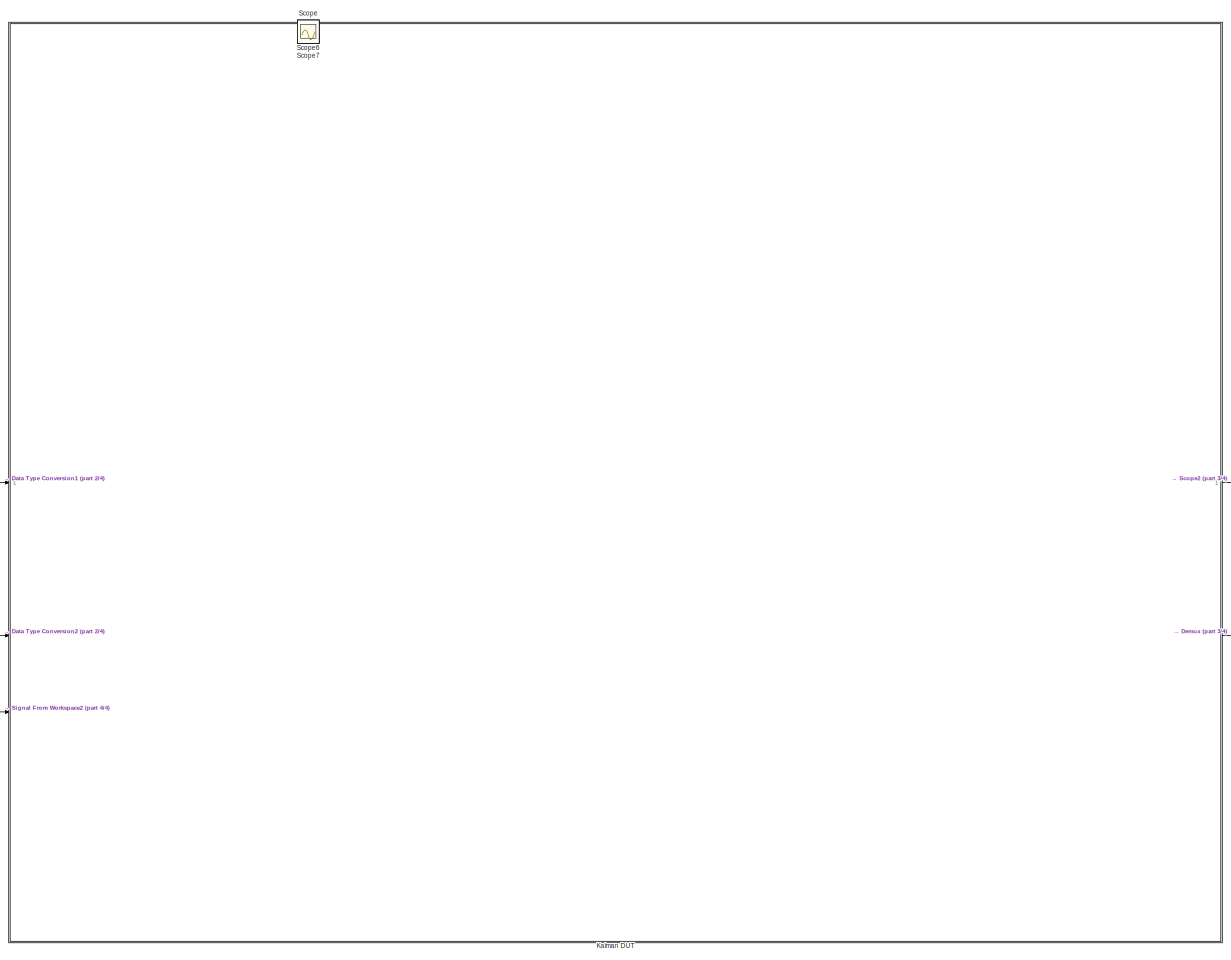
[diagram: root canvas - part 1/4, center side, full height]
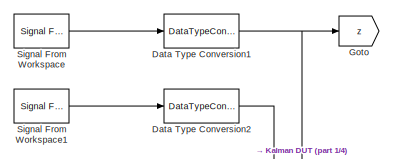
[diagram: root canvas - part 2/4, top left region]
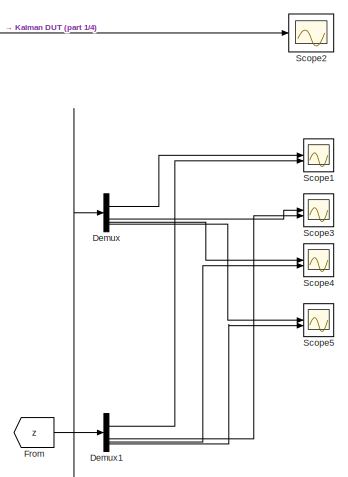
[diagram: root canvas - part 3/4, top right region]
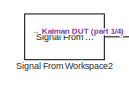
[diagram: root canvas - part 4/4, top left region]
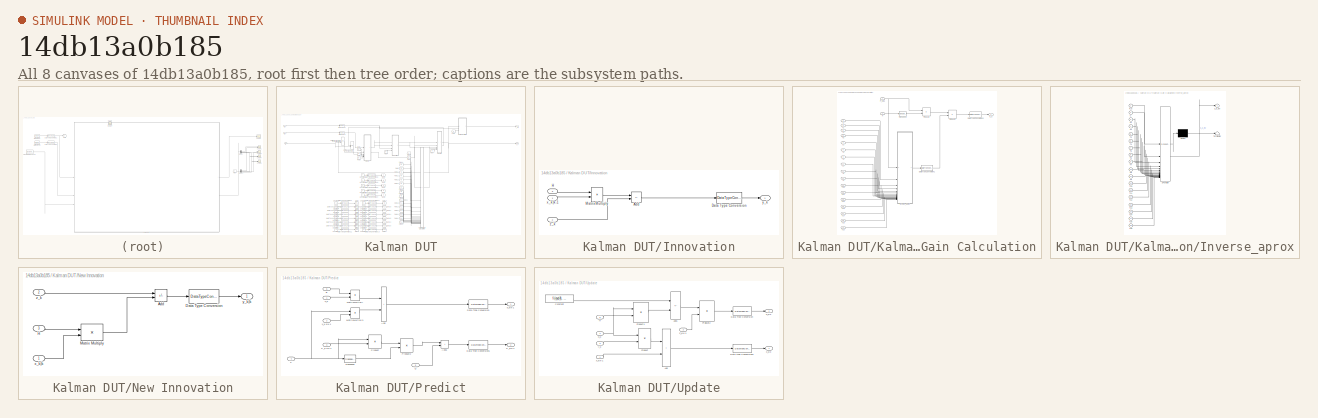
[diagram: thumbnail index - all 8 canvases of the model, root first then tree order]
MODEL slx_14db13a0b185
KIND model
CONFIG AbsTol = auto
CONFIG EnableMultiTasking = off
CONFIG FixedStep = auto
CONFIG MaxStep = auto
CONFIG MinStep = auto
CONFIG RelTol = 1e-3
CONFIG SampleTimeConstraint = Unconstrained
CONFIG SolverName = VariableStepAuto
CONFIG StartTime = 0.0
CONFIG StopTime = StopTime
BLOCK [DataTypeConversion] Data Type Conversion1
  OutDataTypeStr = FixedPointPrecision
  RndMeth = Floor
  SaturateOnIntegerOverflow = off
BLOCK [DataTypeConversion] Data Type Conversion2
  OutDataTypeStr = FixedPointPrecision
  RndMeth = Floor
  SaturateOnIntegerOverflow = off
BLOCK [Demux] Demux
BLOCK [Demux] Demux1
BLOCK [From] From
  GotoTag = z
BLOCK [Goto] Goto
  GotoTag = z
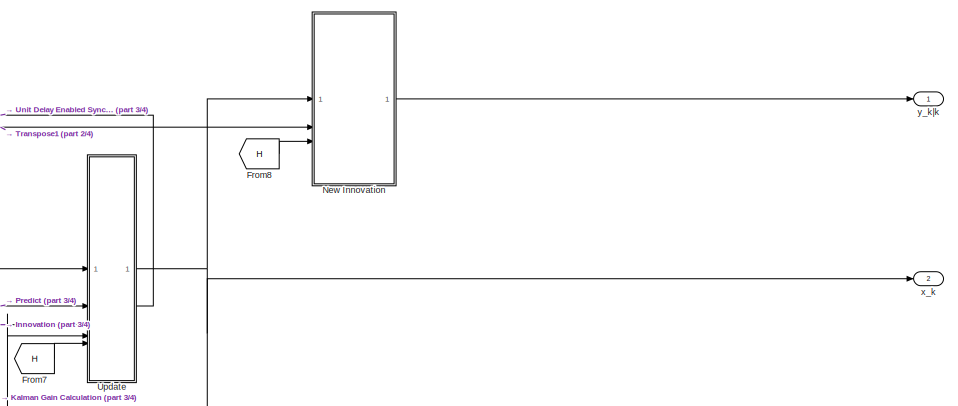
[diagram: Kalman DUT - part 1/4, top right region]
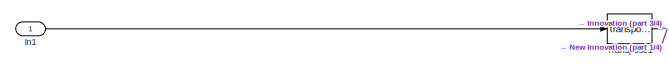
[diagram: Kalman DUT - part 2/4, top left region]
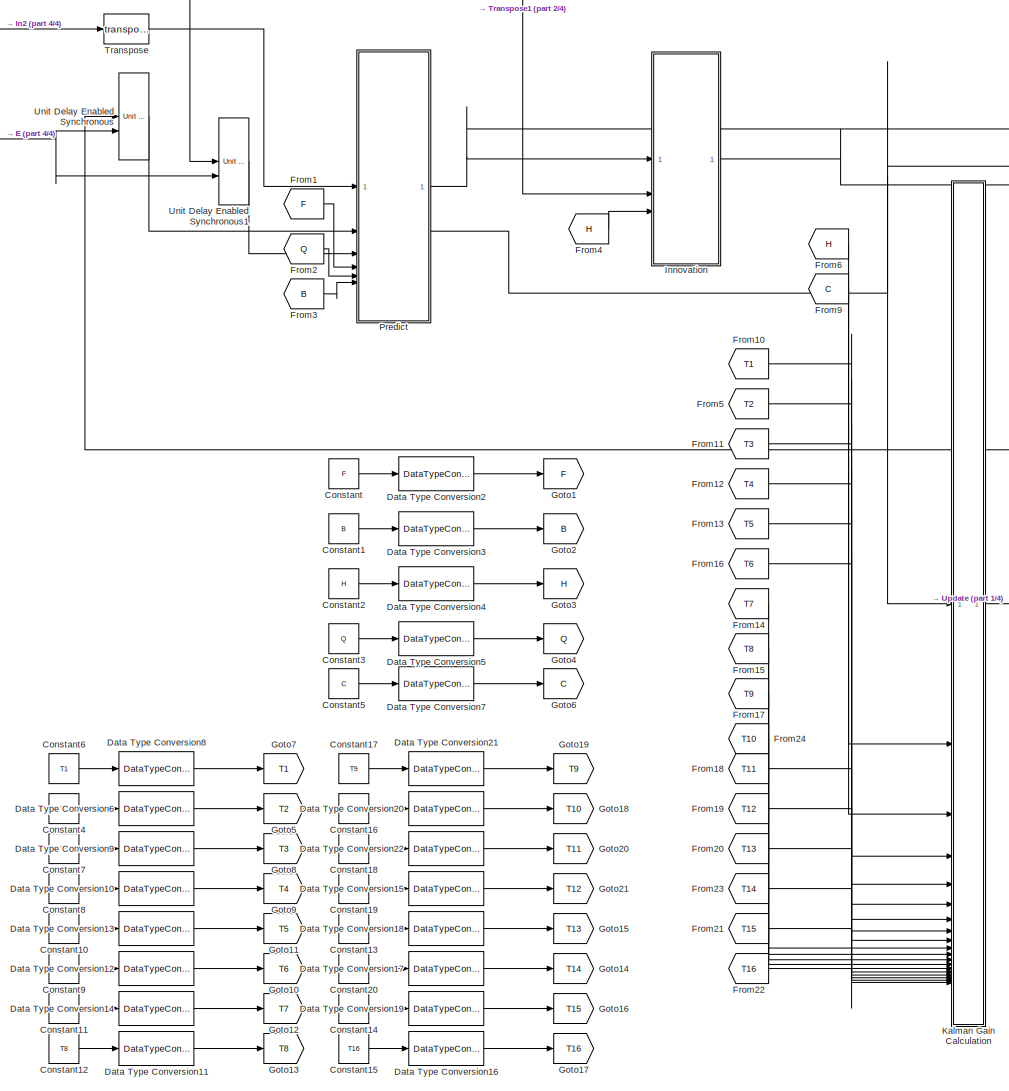
[diagram: Kalman DUT - part 3/4, center side, full height]
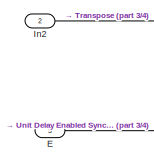
[diagram: Kalman DUT - part 4/4, top left region]
BLOCK [SubSystem] Kalman DUT
BLOCK [Constant] Kalman DUT/Constant
  Value = F
BLOCK [Constant] Kalman DUT/Constant1
  Value = B
BLOCK [Constant] Kalman DUT/Constant10
  Value = T5
BLOCK [Constant] Kalman DUT/Constant11
  Value = T7
BLOCK [Constant] Kalman DUT/Constant12
  Value = T8
BLOCK [Constant] Kalman DUT/Constant13
  Value = T13
BLOCK [Constant] Kalman DUT/Constant14
  Value = T15
BLOCK [Constant] Kalman DUT/Constant15
  Value = T16
BLOCK [Constant] Kalman DUT/Constant16
  Value = T10
BLOCK [Constant] Kalman DUT/Constant17
  Value = T9
BLOCK [Constant] Kalman DUT/Constant18
  Value = T11
BLOCK [Constant] Kalman DUT/Constant19
  Value = T12
BLOCK [Constant] Kalman DUT/Constant2
  Value = H
BLOCK [Constant] Kalman DUT/Constant20
  Value = T14
BLOCK [Constant] Kalman DUT/Constant3
  Value = Q
BLOCK [Constant] Kalman DUT/Constant4
  Value = T2
BLOCK [Constant] Kalman DUT/Constant5
  NameLocation = top
  Value = C
BLOCK [Constant] Kalman DUT/Constant6
  Value = T1
BLOCK [Constant] Kalman DUT/Constant7
  Value = T3
BLOCK [Constant] Kalman DUT/Constant8
  Value = T4
BLOCK [Constant] Kalman DUT/Constant9
  Value = T6
BLOCK [DataTypeConversion] Kalman DUT/Data Type Conversion10
  OutDataTypeStr = FixedPointPrecision
  RndMeth = Floor
  SaturateOnIntegerOverflow = off
BLOCK [DataTypeConversion] Kalman DUT/Data Type Conversion11
  OutDataTypeStr = FixedPointPrecision
  RndMeth = Floor
  SaturateOnIntegerOverflow = off
BLOCK [DataTypeConversion] Kalman DUT/Data Type Conversion12
  OutDataTypeStr = FixedPointPrecision
  RndMeth = Floor
  SaturateOnIntegerOverflow = off
BLOCK [DataTypeConversion] Kalman DUT/Data Type Conversion13
  OutDataTypeStr = FixedPointPrecision
  RndMeth = Floor
  SaturateOnIntegerOverflow = off
BLOCK [DataTypeConversion] Kalman DUT/Data Type Conversion14
  OutDataTypeStr = FixedPointPrecision
  RndMeth = Floor
  SaturateOnIntegerOverflow = off
BLOCK [DataTypeConversion] Kalman DUT/Data Type Conversion15
  OutDataTypeStr = FixedPointPrecision
  RndMeth = Floor
  SaturateOnIntegerOverflow = off
BLOCK [DataTypeConversion] Kalman DUT/Data Type Conversion16
  OutDataTypeStr = FixedPointPrecision
  RndMeth = Floor
  SaturateOnIntegerOverflow = off
BLOCK [DataTypeConversion] Kalman DUT/Data Type Conversion17
  OutDataTypeStr = FixedPointPrecision
  RndMeth = Floor
  SaturateOnIntegerOverflow = off
BLOCK [DataTypeConversion] Kalman DUT/Data Type Conversion18
  OutDataTypeStr = FixedPointPrecision
  RndMeth = Floor
  SaturateOnIntegerOverflow = off
BLOCK [DataTypeConversion] Kalman DUT/Data Type Conversion19
  OutDataTypeStr = FixedPointPrecision
  RndMeth = Floor
  SaturateOnIntegerOverflow = off
BLOCK [DataTypeConversion] Kalman DUT/Data Type Conversion2
  OutDataTypeStr = FixedPointPrecision
  RndMeth = Floor
  SaturateOnIntegerOverflow = off
BLOCK [DataTypeConversion] Kalman DUT/Data Type Conversion20
  OutDataTypeStr = FixedPointPrecision
  RndMeth = Floor
  SaturateOnIntegerOverflow = off
BLOCK [DataTypeConversion] Kalman DUT/Data Type Conversion21
  OutDataTypeStr = FixedPointPrecision
  RndMeth = Floor
  SaturateOnIntegerOverflow = off
BLOCK [DataTypeConversion] Kalman DUT/Data Type Conversion22
  OutDataTypeStr = FixedPointPrecision
  RndMeth = Floor
  SaturateOnIntegerOverflow = off
BLOCK [DataTypeConversion] Kalman DUT/Data Type Conversion3
  OutDataTypeStr = FixedPointPrecision
  RndMeth = Floor
  SaturateOnIntegerOverflow = off
BLOCK [DataTypeConversion] Kalman DUT/Data Type Conversion4
  OutDataTypeStr = FixedPointPrecision
  RndMeth = Floor
  SaturateOnIntegerOverflow = off
BLOCK [DataTypeConversion] Kalman DUT/Data Type Conversion5
  OutDataTypeStr = FixedPointPrecision
  RndMeth = Floor
  SaturateOnIntegerOverflow = off
BLOCK [DataTypeConversion] Kalman DUT/Data Type Conversion6
  OutDataTypeStr = FixedPointPrecision
  RndMeth = Floor
  SaturateOnIntegerOverflow = off
BLOCK [DataTypeConversion] Kalman DUT/Data Type Conversion7
  OutDataTypeStr = FixedPointPrecision
  RndMeth = Floor
  SaturateOnIntegerOverflow = off
BLOCK [DataTypeConversion] Kalman DUT/Data Type Conversion8
  OutDataTypeStr = FixedPointPrecision
  RndMeth = Floor
  SaturateOnIntegerOverflow = off
BLOCK [DataTypeConversion] Kalman DUT/Data Type Conversion9
  OutDataTypeStr = FixedPointPrecision
  RndMeth = Floor
  SaturateOnIntegerOverflow = off
BLOCK [Inport] Kalman DUT/E
  Port = 3
BLOCK [From] Kalman DUT/From1
  GotoTag = F
BLOCK [From] Kalman DUT/From10
  GotoTag = T1
BLOCK [From] Kalman DUT/From11
  GotoTag = T3
BLOCK [From] Kalman DUT/From12
  GotoTag = T4
BLOCK [From] Kalman DUT/From13
  GotoTag = T5
BLOCK [From] Kalman DUT/From14
  GotoTag = T7
BLOCK [From] Kalman DUT/From15
  GotoTag = T8
BLOCK [From] Kalman DUT/From16
  GotoTag = T6
BLOCK [From] Kalman DUT/From17
  GotoTag = T9
BLOCK [From] Kalman DUT/From18
  GotoTag = T11
BLOCK [From] Kalman DUT/From19
  GotoTag = T12
BLOCK [From] Kalman DUT/From2
  GotoTag = Q
BLOCK [From] Kalman DUT/From20
  GotoTag = T13
BLOCK [From] Kalman DUT/From21
  GotoTag = T15
BLOCK [From] Kalman DUT/From22
  GotoTag = T16
BLOCK [From] Kalman DUT/From23
  GotoTag = T14
BLOCK [From] Kalman DUT/From24
  GotoTag = T10
BLOCK [From] Kalman DUT/From3
  GotoTag = B
BLOCK [From] Kalman DUT/From4
  GotoTag = H
BLOCK [From] Kalman DUT/From5
  GotoTag = T2
BLOCK [From] Kalman DUT/From6
  GotoTag = H
BLOCK [From] Kalman DUT/From7
  GotoTag = H
BLOCK [From] Kalman DUT/From8
  GotoTag = H
BLOCK [From] Kalman DUT/From9
  GotoTag = C
BLOCK [Goto] Kalman DUT/Goto1
  GotoTag = F
BLOCK [Goto] Kalman DUT/Goto10
  GotoTag = T6
BLOCK [Goto] Kalman DUT/Goto11
  GotoTag = T5
BLOCK [Goto] Kalman DUT/Goto12
  GotoTag = T7
BLOCK [Goto] Kalman DUT/Goto13
  GotoTag = T8
BLOCK [Goto] Kalman DUT/Goto14
  GotoTag = T14
BLOCK [Goto] Kalman DUT/Goto15
  GotoTag = T13
BLOCK [Goto] Kalman DUT/Goto16
  GotoTag = T15
BLOCK [Goto] Kalman DUT/Goto17
  GotoTag = T16
BLOCK [Goto] Kalman DUT/Goto18
  GotoTag = T10
BLOCK [Goto] Kalman DUT/Goto19
  GotoTag = T9
BLOCK [Goto] Kalman DUT/Goto2
  GotoTag = B
BLOCK [Goto] Kalman DUT/Goto20
  GotoTag = T11
BLOCK [Goto] Kalman DUT/Goto21
  GotoTag = T12
BLOCK [Goto] Kalman DUT/Goto3
  GotoTag = H
BLOCK [Goto] Kalman DUT/Goto4
  GotoTag = Q
BLOCK [Goto] Kalman DUT/Goto5
  GotoTag = T2
BLOCK [Goto] Kalman DUT/Goto6
  GotoTag = C
BLOCK [Goto] Kalman DUT/Goto7
  GotoTag = T1
BLOCK [Goto] Kalman DUT/Goto8
  GotoTag = T3
BLOCK [Goto] Kalman DUT/Goto9
  GotoTag = T4
BLOCK [Inport] Kalman DUT/In1
BLOCK [Inport] Kalman DUT/In2
  Port = 2
BLOCK [SubSystem] Kalman DUT/Innovation
BLOCK [Sum] Kalman DUT/Innovation/Add
  IconShape = rectangular
  Inputs = -+
BLOCK [DataTypeConversion] Kalman DUT/Innovation/Data Type Conversion
  OutDataTypeStr = FixedPointPrecision
  RndMeth = Floor
  SaturateOnIntegerOverflow = off
BLOCK [Inport] Kalman DUT/Innovation/H
  Port = 3
BLOCK [Product] Kalman DUT/Innovation/MatrixMultiply
  Multiplication = Matrix(*)
BLOCK [Inport] Kalman DUT/Innovation/x_k|k-1
BLOCK [Outport] Kalman DUT/Innovation/y_k
BLOCK [Inport] Kalman DUT/Innovation/z_k
  Port = 2
BLOCK [SubSystem] Kalman DUT/Kalman Gain Calculation
BLOCK [Inport] Kalman DUT/Kalman Gain Calculation/C
  Port = 3
BLOCK [DataTypeConversion] Kalman DUT/Kalman Gain Calculation/Data Type Conversion1
  OutDataTypeStr = FixedPointPrecision
  RndMeth = Floor
  SaturateOnIntegerOverflow = off
BLOCK [DataTypeConversion] Kalman DUT/Kalman Gain Calculation/Data Type Conversion2
  OutDataTypeStr = FixedPointPrecision
  RndMeth = Floor
  SaturateOnIntegerOverflow = off
BLOCK [Inport] Kalman DUT/Kalman Gain Calculation/H
  Port = 2
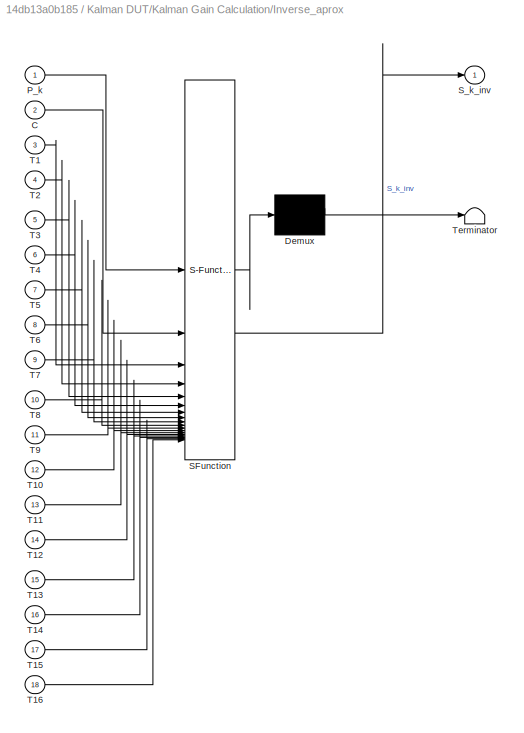
BLOCK [SubSystem] Kalman DUT/Kalman Gain Calculation/Inverse_aprox
  ErrorFcn = Stateflow.Translate.translate
  PermitHierarchicalResolution = ExplicitOnly
  SFBlockType = MATLAB Function
  TreatAsAtomicUnit = on
BLOCK [Demux] Kalman DUT/Kalman Gain Calculation/Inverse_aprox/ Demux 
  Outputs = 1
BLOCK [S-Function] Kalman DUT/Kalman Gain Calculation/Inverse_aprox/ SFunction 
  EnableBusSupport = off
  FunctionName = sf_sfun
  PortCounts = [18 2]
  SFcnIsStateOwnerBlock = off
  SFunctionDeploymentMode = off
  Tag = Stateflow S-Function 2
BLOCK [Terminator] Kalman DUT/Kalman Gain Calculation/Inverse_aprox/ Terminator 
BLOCK [Inport] Kalman DUT/Kalman Gain Calculation/Inverse_aprox/C
  Port = 2
BLOCK [Inport] Kalman DUT/Kalman Gain Calculation/Inverse_aprox/P_k
BLOCK [Outport] Kalman DUT/Kalman Gain Calculation/Inverse_aprox/S_k_inv
BLOCK [Inport] Kalman DUT/Kalman Gain Calculation/Inverse_aprox/T1
  Port = 3
BLOCK [Inport] Kalman DUT/Kalman Gain Calculation/Inverse_aprox/T10
  Port = 12
BLOCK [Inport] Kalman DUT/Kalman Gain Calculation/Inverse_aprox/T11
  Port = 13
BLOCK [Inport] Kalman DUT/Kalman Gain Calculation/Inverse_aprox/T12
  Port = 14
BLOCK [Inport] Kalman DUT/Kalman Gain Calculation/Inverse_aprox/T13
  Port = 15
BLOCK [Inport] Kalman DUT/Kalman Gain Calculation/Inverse_aprox/T14
  Port = 16
BLOCK [Inport] Kalman DUT/Kalman Gain Calculation/Inverse_aprox/T15
  Port = 17
BLOCK [Inport] Kalman DUT/Kalman Gain Calculation/Inverse_aprox/T16
  Port = 18
BLOCK [Inport] Kalman DUT/Kalman Gain Calculation/Inverse_aprox/T2
  Port = 4
BLOCK [Inport] Kalman DUT/Kalman Gain Calculation/Inverse_aprox/T3
  Port = 5
BLOCK [Inport] Kalman DUT/Kalman Gain Calculation/Inverse_aprox/T4
  Port = 6
BLOCK [Inport] Kalman DUT/Kalman Gain Calculation/Inverse_aprox/T5
  Port = 7
BLOCK [Inport] Kalman DUT/Kalman Gain Calculation/Inverse_aprox/T6
  Port = 8
BLOCK [Inport] Kalman DUT/Kalman Gain Calculation/Inverse_aprox/T7
  Port = 9
BLOCK [Inport] Kalman DUT/Kalman Gain Calculation/Inverse_aprox/T8
  Port = 10
BLOCK [Inport] Kalman DUT/Kalman Gain Calculation/Inverse_aprox/T9
  Port = 11
BLOCK [Outport] Kalman DUT/Kalman Gain Calculation/K_k
BLOCK [Inport] Kalman DUT/Kalman Gain Calculation/P_k|k-1
BLOCK [Product] Kalman DUT/Kalman Gain Calculation/Product1
  Multiplication = Matrix(*)
BLOCK [Product] Kalman DUT/Kalman Gain Calculation/Product2
  Multiplication = Matrix(*)
BLOCK [Inport] Kalman DUT/Kalman Gain Calculation/T1
  Port = 4
BLOCK [Inport] Kalman DUT/Kalman Gain Calculation/T10
  Port = 13
BLOCK [Inport] Kalman DUT/Kalman Gain Calculation/T11
  Port = 14
BLOCK [Inport] Kalman DUT/Kalman Gain Calculation/T12
  Port = 15
BLOCK [Inport] Kalman DUT/Kalman Gain Calculation/T13
  Port = 16
BLOCK [Inport] Kalman DUT/Kalman Gain Calculation/T14
  Port = 17
BLOCK [Inport] Kalman DUT/Kalman Gain Calculation/T15
  Port = 18
BLOCK [Inport] Kalman DUT/Kalman Gain Calculation/T16
  Port = 19
BLOCK [Inport] Kalman DUT/Kalman Gain Calculation/T2
  Port = 5
BLOCK [Inport] Kalman DUT/Kalman Gain Calculation/T3
  Port = 6
BLOCK [Inport] Kalman DUT/Kalman Gain Calculation/T4
  Port = 7
BLOCK [Inport] Kalman DUT/Kalman Gain Calculation/T5
  Port = 8
BLOCK [Inport] Kalman DUT/Kalman Gain Calculation/T6
  Port = 9
BLOCK [Inport] Kalman DUT/Kalman Gain Calculation/T7
  Port = 10
BLOCK [Inport] Kalman DUT/Kalman Gain Calculation/T8
  Port = 11
BLOCK [Inport] Kalman DUT/Kalman Gain Calculation/T9
  Port = 12
BLOCK [Math] Kalman DUT/Kalman Gain Calculation/Transpose
  Operator = transpose
  RndMeth = Zero
  SignedPower = on
BLOCK [SubSystem] Kalman DUT/New Innovation
BLOCK [Sum] Kalman DUT/New Innovation/Add
  IconShape = rectangular
  Inputs = +-
BLOCK [DataTypeConversion] Kalman DUT/New Innovation/Data Type Conversion
  OutDataTypeStr = FixedPointPrecision
  RndMeth = Floor
  SaturateOnIntegerOverflow = off
BLOCK [Inport] Kalman DUT/New Innovation/H
  Port = 3
BLOCK [Product] Kalman DUT/New Innovation/Matrix Multiply
  Multiplication = Matrix(*)
BLOCK [Inport] Kalman DUT/New Innovation/x_k|k
BLOCK [Outport] Kalman DUT/New Innovation/y_k|k
BLOCK [Inport] Kalman DUT/New Innovation/z_k
  Port = 2
BLOCK [SubSystem] Kalman DUT/Predict
BLOCK [Sum] Kalman DUT/Predict/Add
  IconShape = rectangular
BLOCK [Sum] Kalman DUT/Predict/Add1
  IconShape = rectangular
BLOCK [Inport] Kalman DUT/Predict/B
  Port = 6
BLOCK [DataTypeConversion] Kalman DUT/Predict/Data Type Conversion
  OutDataTypeStr = FixedPointPrecision
  RndMeth = Floor
  SaturateOnIntegerOverflow = off
BLOCK [DataTypeConversion] Kalman DUT/Predict/Data Type Conversion1
  OutDataTypeStr = FixedPointPrecision
  RndMeth = Floor
  SaturateOnIntegerOverflow = off
BLOCK [Inport] Kalman DUT/Predict/F
  Port = 4
BLOCK [Product] Kalman DUT/Predict/MatrixMultiply
  Multiplication = Matrix(*)
BLOCK [Product] Kalman DUT/Predict/MatrixMultiply1
  Multiplication = Matrix(*)
BLOCK [Inport] Kalman DUT/Predict/P_k-1|k-1
  Port = 3
BLOCK [Outport] Kalman DUT/Predict/P_k|k-1
  Port = 2
BLOCK [Product] Kalman DUT/Predict/Product
  Multiplication = Matrix(*)
BLOCK [Product] Kalman DUT/Predict/Product2
  Multiplication = Matrix(*)
BLOCK [Inport] Kalman DUT/Predict/Q
  Port = 5
BLOCK [Math] Kalman DUT/Predict/Transpose
  Operator = transpose
  RndMeth = Zero
  SignedPower = on
BLOCK [Inport] Kalman DUT/Predict/u_k
BLOCK [Inport] Kalman DUT/Predict/x_k-1|k-1
  Port = 2
BLOCK [Outport] Kalman DUT/Predict/x_k|k-1
BLOCK [Math] Kalman DUT/Transpose
  Operator = transpose
  RndMeth = Zero
  SignedPower = on
BLOCK [Math] Kalman DUT/Transpose1
  Operator = transpose
  RndMeth = Zero
  SignedPower = on
BLOCK [Reference] Kalman DUT/Unit Delay Enabled Synchronous  REF=hdlsllib/Discrete/Unit Delay Enabled
Synchronous
  SourceBlock = hdlsllib/Discrete/Unit Delay Enabled\nSynchronous
  SourceType = Unit Delay Enabled Synchronous
BLOCK [Reference] Kalman DUT/Unit Delay Enabled Synchronous1  REF=hdlsllib/Discrete/Unit Delay Enabled
Synchronous
  SourceBlock = hdlsllib/Discrete/Unit Delay Enabled\nSynchronous
  SourceType = Unit Delay Enabled Synchronous
BLOCK [SubSystem] Kalman DUT/Update
BLOCK [Sum] Kalman DUT/Update/Add
  IconShape = rectangular
BLOCK [Sum] Kalman DUT/Update/Add1
  IconShape = rectangular
  Inputs = +-
BLOCK [Constant] Kalman DUT/Update/Constant
  Value = fi(eye(4), true, 32, 20)
BLOCK [DataTypeConversion] Kalman DUT/Update/Data Type Conversion
  OutDataTypeStr = FixedPointPrecision
  RndMeth = Floor
  SaturateOnIntegerOverflow = off
BLOCK [DataTypeConversion] Kalman DUT/Update/Data Type Conversion2
  OutDataTypeStr = FixedPointPrecision
  RndMeth = Floor
  SaturateOnIntegerOverflow = off
BLOCK [Inport] Kalman DUT/Update/H
  Port = 5
BLOCK [Inport] Kalman DUT/Update/K_k
  Port = 4
BLOCK [Outport] Kalman DUT/Update/P_k|k
  Port = 2
BLOCK [Inport] Kalman DUT/Update/P_k|k-1
  Port = 2
BLOCK [Product] Kalman DUT/Update/Product
  Multiplication = Matrix(*)
BLOCK [Product] Kalman DUT/Update/Product1
  Multiplication = Matrix(*)
BLOCK [Product] Kalman DUT/Update/Product2
  Multiplication = Matrix(*)
BLOCK [Outport] Kalman DUT/Update/x_k|k
BLOCK [Inport] Kalman DUT/Update/x_k|k-1
BLOCK [Inport] Kalman DUT/Update/y_k
  Port = 3
BLOCK [Outport] Kalman DUT/x_k
  Port = 2
BLOCK [Outport] Kalman DUT/y_k|k
BLOCK [Scope] Scope
  ActiveDisplayYMaximum = 57.624373102579447
  ActiveDisplayYMinimum = -9.1353842219735029
  DataLoggingVariableName = ScopeData5
  Floating = off
  GraphicalSettings = {"AxesScalingProperties":{"AlignXAxis":"Center","AlignYAxis":"Center","AutoScaleXAxisLimits":false,"AxesScaling":"auto","AxesScalingNumUpdates":10,"ExpandOnly":true,"ScaleAxesLimitsAtStop":false,"XAxisDataRange":100,"YAxisDataRange":80},"DisplayProperties":{"ColorOrder":["auto","auto","auto","auto","auto","auto","auto","auto","auto","auto","auto","auto","auto","auto","auto","auto","auto","auto","a...<+2481ch>
  IOType = viewer
  MultipleDisplayCache = [{"MaxYLimMag":58.694109290838242,"MaxYLimReal":57.624373102579447,"MinYLimMag":0,"MinYLimReal":-9.1353842219735029,"PlotAsMagnitudePhase":false,"ShowGrid":true,"ShowLegend":false,"Title":"%<SignalLabel>","YLabel":""}]
  NumInputPorts = 1
  ScopeFrameLocation = window
  WasSavedAsWebScope = on
  WindowPosition = [1.000000,49.000000,1536.000000,793.000000,]
BLOCK [Scope] Scope1
  ActiveDisplayYMaximum = 2.0535397271105578
  ActiveDisplayYMinimum = 0.44600438166261591
  DataLoggingDecimation = 1
  DataLoggingLimitDataPoints = on
  DataLoggingSaveFormat = Array
  Floating = off
  GraphicalSettings = {"AxesScalingProperties":{"AlignXAxis":"Center","AlignYAxis":"Center","AutoScaleXAxisLimits":false,"AxesScaling":"manual","AxesScalingNumUpdates":10,"ExpandOnly":true,"ScaleAxesLimitsAtStop":false,"XAxisDataRange":100,"YAxisDataRange":80},"DisplayProperties":{"ColorOrder":["auto","auto","auto","auto","auto","auto","auto","auto","auto","auto","auto","auto","auto","auto","auto","auto","auto","auto",...<+2322ch>
  MultipleDisplayCache = [{"MaxYLimMag":2.4689902067184448,"MaxYLimReal":2.0535397271105578,"MinYLimMag":0,"MinYLimReal":0.44600438166261591,"PlotAsMagnitudePhase":false,"ShowGrid":true,"ShowLegend":true,"Title":"%<SignalLabel>","YLabel":""}]
  NumInputPorts = 2
  ScopeFrameLocation = window
  ShowLegend = on
  WasSavedAsWebScope = on
  WindowPosition = [1.000000,49.000000,1536.000000,793.000000,]
BLOCK [Scope] Scope2
  ActiveDisplayYMaximum = 0.00587966952456793
  ActiveDisplayYMinimum = -0.011525178669385456
  DataLoggingDecimation = 1
  DataLoggingLimitDataPoints = on
  DataLoggingSaveFormat = Array
  DataLoggingVariableName = ScopeData1
  Floating = off
  GraphicalSettings = {"AxesScalingProperties":{"AlignXAxis":"Center","AlignYAxis":"Center","AutoScaleXAxisLimits":false,"AxesScaling":"Manual","AxesScalingNumUpdates":10,"ExpandOnly":true,"ScaleAxesLimitsAtStop":false,"XAxisDataRange":100,"YAxisDataRange":80},"DisplayProperties":{"ColorOrder":["auto","auto","auto","auto","auto","auto","auto","auto","auto","auto","auto","auto","auto","auto","auto","auto","auto","auto",...<+2326ch>
  MultipleDisplayCache = [{"MaxYLimMag":1,"MaxYLimReal":0.00587966952456793,"MinYLimMag":0,"MinYLimReal":-0.011525178669385456,"PlotAsMagnitudePhase":false,"ShowGrid":true,"ShowLegend":true,"Title":"%<SignalLabel>","YLabel":""}]
  NumInputPorts = 1
  ScopeFrameLocation = window
  ShowLegend = on
  WasSavedAsWebScope = on
  WindowPosition = [351.000000,167.000000,835.000000,530.000000,]
BLOCK [Scope] Scope3
  ActiveDisplayYMaximum = 1
  ActiveDisplayYMinimum = -1
  DataLoggingDecimation = 1
  DataLoggingLimitDataPoints = on
  DataLoggingSaveFormat = Array
  DataLoggingVariableName = ScopeData2
  Floating = off
  GraphicalSettings = {"Style":{"BackgroundColor":[0.12941176470588237,0.12941176470588237,0.12941176470588237],"AxesColor":[0.07058823529411765,0.07058823529411765,0.07058823529411765],"LabelsColor":[0.8509803921568627,0.8509803921568627,0.8509803921568627],"PreserveColors":false,"Visible":[true,true],"LineStyle":["-","-"],"LineWidth":[1.5,1.5],"BarWidth":[0.9,0.9],"LineColor":["auto","auto"],"LineFaceAlpha":[1,1],"Li...<+2113ch>
  MultipleDisplayCache = [{"MaxYLimMag":1,"MaxYLimReal":1,"MinYLimMag":0,"MinYLimReal":-1,"PlotAsMagnitudePhase":false,"ShowGrid":true,"ShowLegend":true,"Title":"%<SignalLabel>","YLabel":""}]
  NumInputPorts = 2
  ScopeFrameLocation = window
  ShowLegend = on
  WasSavedAsWebScope = on
  WindowPosition = [323.000000,187.000000,802.000000,520.000000,]
BLOCK [Scope] Scope4
  ActiveDisplayYMaximum = 12.219950065546442
  ActiveDisplayYMinimum = -2.08087494415443
  DataLoggingDecimation = 1
  DataLoggingLimitDataPoints = on
  DataLoggingSaveFormat = Array
  DataLoggingVariableName = ScopeData3
  Floating = off
  GraphicalSettings = {"Style":{"BackgroundColor":[0.12941176470588237,0.12941176470588237,0.12941176470588237],"AxesColor":[0.07058823529411765,0.07058823529411765,0.07058823529411765],"LabelsColor":[0.8509803921568627,0.8509803921568627,0.8509803921568627],"PreserveColors":false,"Visible":[true,true],"LineStyle":["-","-"],"LineWidth":[1.5,1.5],"BarWidth":[0.9,0.9],"LineColor":["auto","auto"],"LineFaceAlpha":[1,1],"Li...<+2112ch>
  MultipleDisplayCache = [{"MaxYLimMag":11.771475076675415,"MaxYLimReal":12.219950065546442,"MinYLimMag":0,"MinYLimReal":-2.08087494415443,"PlotAsMagnitudePhase":false,"ShowGrid":true,"ShowLegend":false,"Title":"%<SignalLabel>","YLabel":""}]
  NumInputPorts = 2
  ScopeFrameLocation = window
  WasSavedAsWebScope = on
  WindowPosition = [0.000000,36.000000,1536.000000,793.000000,]
BLOCK [Scope] Scope5
  ActiveDisplayYMaximum = 0.44371345235011872
  ActiveDisplayYMinimum = -0.36244737237361535
  DataLoggingDecimation = 1
  DataLoggingLimitDataPoints = on
  DataLoggingSaveFormat = Array
  DataLoggingVariableName = ScopeData4
  Floating = off
  GraphicalSettings = {"Style":{"BackgroundColor":[0.12941176470588237,0.12941176470588237,0.12941176470588237],"AxesColor":[0.07058823529411765,0.07058823529411765,0.07058823529411765],"LabelsColor":[0.8509803921568627,0.8509803921568627,0.8509803921568627],"PreserveColors":false,"Visible":[true,true,true,true],"LineStyle":["-","-","-","-"],"LineWidth":[1.5,1.5,1.5,1.5],"BarWidth":[0.9,0.9,0.9,0.9],"LineColor":["auto"...<+2271ch>
  MultipleDisplayCache = [{"MaxYLimMag":0.44371345235011872,"MaxYLimReal":0.44371345235011872,"MinYLimMag":0,"MinYLimReal":-0.36244737237361535,"PlotAsMagnitudePhase":false,"ShowGrid":true,"ShowLegend":false,"Title":"%<SignalLabel>","YLabel":""}]
  NumInputPorts = 2
  ScopeFrameLocation = window
  WasSavedAsWebScope = on
  WindowPosition = [188 596 324 239]
BLOCK [Scope] Scope6
  ActiveDisplayYMaximum = 1
  ActiveDisplayYMinimum = -1
  DataLoggingVariableName = ScopeData6
  Floating = off
  GraphicalSettings = {"Style":{"BackgroundColor":[0.12941176470588237,0.12941176470588237,0.12941176470588237],"AxesColor":[0.07058823529411765,0.07058823529411765,0.07058823529411765],"LabelsColor":[0.8509803921568627,0.8509803921568627,0.8509803921568627],"PreserveColors":false,"Visible":[true,true,true,true],"LineStyle":["-","-","-","-"],"LineWidth":[1.5,1.5,1.5,1.5],"BarWidth":[0.9,0.9,0.9,0.9],"LineColor":["auto"...<+2367ch>
  IOType = viewer
  MultipleDisplayCache = [{"MaxYLimMag":1,"MaxYLimReal":1,"MinYLimMag":0,"MinYLimReal":-1,"PlotAsMagnitudePhase":false,"ShowGrid":true,"ShowLegend":false,"Title":"%<SignalLabel>","YLabel":""}]
  NumInputPorts = 1
  ScopeFrameLocation = window
  WasSavedAsWebScope = on
  WindowPosition = [488.000000,222.000000,560.000000,420.000000,]
BLOCK [Scope] Scope7
  ActiveDisplayYMaximum = 0.31970751285552979
  ActiveDisplayYMinimum = -0.035523056983947747
  DataLoggingVariableName = ScopeData7
  Floating = off
  GraphicalSettings = {"Style":{"BackgroundColor":[0.12941176470588237,0.12941176470588237,0.12941176470588237],"AxesColor":[0.07058823529411765,0.07058823529411765,0.07058823529411765],"LabelsColor":[0.8509803921568627,0.8509803921568627,0.8509803921568627],"PreserveColors":false,"Visible":[true,false,false,false,false,false,false,true,false,false,false,false,false,false,false,false],"LineStyle":["-","-","-","-","-","...<+4253ch>
  IOType = viewer
  MultipleDisplayCache = [{"MaxYLimMag":0.31970751285552979,"MaxYLimReal":0.31970751285552979,"MinYLimMag":0,"MinYLimReal":-0.035523056983947747,"PlotAsMagnitudePhase":false,"ShowGrid":true,"ShowLegend":true,"Title":"%<SignalLabel>","YLabel":""}]
  NumInputPorts = 1
  ScopeFrameLocation = window
  ShowLegend = on
  WasSavedAsWebScope = on
  WindowPosition = [1.000000,49.000000,1536.000000,793.000000,]
BLOCK [Reference] Signal From Workspace  REF=dspsrcs4/Signal From
Workspace
  SourceBlock = dspsrcs4/Signal From\nWorkspace
  SourceType = Signal From Workspace
BLOCK [Reference] Signal From Workspace1  REF=dspsrcs4/Signal From
Workspace
  SourceBlock = dspsrcs4/Signal From\nWorkspace
  SourceType = Signal From Workspace
BLOCK [Reference] Signal From Workspace2  REF=dspsrcs4/Signal From
Workspace
  SourceBlock = dspsrcs4/Signal From\nWorkspace
  SourceType = Signal From Workspace
NET Data Type Conversion1:1 -> Goto:1, Kalman DUT:1
LINE Data Type Conversion2:1 -> Kalman DUT:2
LINE Demux1:1 -> Scope1:2
LINE Demux1:2 -> Scope3:2
LINE Demux1:3 -> Scope4:2
LINE Demux1:4 -> Scope5:2
LINE Demux:1 -> Scope1:1
LINE Demux:2 -> Scope3:1
LINE Demux:3 -> Scope4:1
LINE Demux:4 -> Scope5:1
LINE From:1 -> Demux1:1
LINE Kalman DUT/Constant10:1 -> Kalman DUT/Data Type Conversion13:1
LINE Kalman DUT/Constant11:1 -> Kalman DUT/Data Type Conversion14:1
LINE Kalman DUT/Constant12:1 -> Kalman DUT/Data Type Conversion11:1
LINE Kalman DUT/Constant13:1 -> Kalman DUT/Data Type Conversion18:1
LINE Kalman DUT/Constant14:1 -> Kalman DUT/Data Type Conversion19:1
LINE Kalman DUT/Constant15:1 -> Kalman DUT/Data Type Conversion16:1
LINE Kalman DUT/Constant16:1 -> Kalman DUT/Data Type Conversion20:1
LINE Kalman DUT/Constant17:1 -> Kalman DUT/Data Type Conversion21:1
LINE Kalman DUT/Constant18:1 -> Kalman DUT/Data Type Conversion22:1
LINE Kalman DUT/Constant19:1 -> Kalman DUT/Data Type Conversion15:1
LINE Kalman DUT/Constant1:1 -> Kalman DUT/Data Type Conversion3:1
LINE Kalman DUT/Constant20:1 -> Kalman DUT/Data Type Conversion17:1
LINE Kalman DUT/Constant2:1 -> Kalman DUT/Data Type Conversion4:1
LINE Kalman DUT/Constant3:1 -> Kalman DUT/Data Type Conversion5:1
LINE Kalman DUT/Constant4:1 -> Kalman DUT/Data Type Conversion6:1
LINE Kalman DUT/Constant5:1 -> Kalman DUT/Data Type Conversion7:1
LINE Kalman DUT/Constant6:1 -> Kalman DUT/Data Type Conversion8:1
LINE Kalman DUT/Constant7:1 -> Kalman DUT/Data Type Conversion9:1
LINE Kalman DUT/Constant8:1 -> Kalman DUT/Data Type Conversion10:1
LINE Kalman DUT/Constant9:1 -> Kalman DUT/Data Type Conversion12:1
LINE Kalman DUT/Constant:1 -> Kalman DUT/Data Type Conversion2:1
LINE Kalman DUT/Data Type Conversion10:1 -> Kalman DUT/Goto9:1
LINE Kalman DUT/Data Type Conversion11:1 -> Kalman DUT/Goto13:1
LINE Kalman DUT/Data Type Conversion12:1 -> Kalman DUT/Goto10:1
LINE Kalman DUT/Data Type Conversion13:1 -> Kalman DUT/Goto11:1
LINE Kalman DUT/Data Type Conversion14:1 -> Kalman DUT/Goto12:1
LINE Kalman DUT/Data Type Conversion15:1 -> Kalman DUT/Goto21:1
LINE Kalman DUT/Data Type Conversion16:1 -> Kalman DUT/Goto17:1
LINE Kalman DUT/Data Type Conversion17:1 -> Kalman DUT/Goto14:1
LINE Kalman DUT/Data Type Conversion18:1 -> Kalman DUT/Goto15:1
LINE Kalman DUT/Data Type Conversion19:1 -> Kalman DUT/Goto16:1
LINE Kalman DUT/Data Type Conversion20:1 -> Kalman DUT/Goto18:1
LINE Kalman DUT/Data Type Conversion21:1 -> Kalman DUT/Goto19:1
LINE Kalman DUT/Data Type Conversion22:1 -> Kalman DUT/Goto20:1
LINE Kalman DUT/Data Type Conversion2:1 -> Kalman DUT/Goto1:1
LINE Kalman DUT/Data Type Conversion3:1 -> Kalman DUT/Goto2:1
LINE Kalman DUT/Data Type Conversion4:1 -> Kalman DUT/Goto3:1
LINE Kalman DUT/Data Type Conversion5:1 -> Kalman DUT/Goto4:1
LINE Kalman DUT/Data Type Conversion6:1 -> Kalman DUT/Goto5:1
LINE Kalman DUT/Data Type Conversion7:1 -> Kalman DUT/Goto6:1
LINE Kalman DUT/Data Type Conversion8:1 -> Kalman DUT/Goto7:1
LINE Kalman DUT/Data Type Conversion9:1 -> Kalman DUT/Goto8:1
NET Kalman DUT/E:1 -> Kalman DUT/Unit Delay Enabled Synchronous1:2, Kalman DUT/Unit Delay Enabled Synchronous:2
LINE Kalman DUT/From10:1 -> Kalman DUT/Kalman Gain Calculation:4
LINE Kalman DUT/From11:1 -> Kalman DUT/Kalman Gain Calculation:6
LINE Kalman DUT/From12:1 -> Kalman DUT/Kalman Gain Calculation:7
LINE Kalman DUT/From13:1 -> Kalman DUT/Kalman Gain Calculation:8
LINE Kalman DUT/From14:1 -> Kalman DUT/Kalman Gain Calculation:10
LINE Kalman DUT/From15:1 -> Kalman DUT/Kalman Gain Calculation:11
LINE Kalman DUT/From16:1 -> Kalman DUT/Kalman Gain Calculation:9
LINE Kalman DUT/From17:1 -> Kalman DUT/Kalman Gain Calculation:12
LINE Kalman DUT/From18:1 -> Kalman DUT/Kalman Gain Calculation:14
LINE Kalman DUT/From19:1 -> Kalman DUT/Kalman Gain Calculation:15
LINE Kalman DUT/From1:1 -> Kalman DUT/Predict:4
LINE Kalman DUT/From20:1 -> Kalman DUT/Kalman Gain Calculation:16
LINE Kalman DUT/From21:1 -> Kalman DUT/Kalman Gain Calculation:18
LINE Kalman DUT/From22:1 -> Kalman DUT/Kalman Gain Calculation:19
LINE Kalman DUT/From23:1 -> Kalman DUT/Kalman Gain Calculation:17
LINE Kalman DUT/From24:1 -> Kalman DUT/Kalman Gain Calculation:13
LINE Kalman DUT/From2:1 -> Kalman DUT/Predict:5
LINE Kalman DUT/From3:1 -> Kalman DUT/Predict:6
LINE Kalman DUT/From4:1 -> Kalman DUT/Innovation:3
LINE Kalman DUT/From5:1 -> Kalman DUT/Kalman Gain Calculation:5
LINE Kalman DUT/From6:1 -> Kalman DUT/Kalman Gain Calculation:2
LINE Kalman DUT/From7:1 -> Kalman DUT/Update:5
LINE Kalman DUT/From8:1 -> Kalman DUT/New Innovation:3
LINE Kalman DUT/From9:1 -> Kalman DUT/Kalman Gain Calculation:3
LINE Kalman DUT/In1:1 -> Kalman DUT/Transpose1:1
LINE Kalman DUT/In2:1 -> Kalman DUT/Transpose:1
LINE Kalman DUT/Innovation/Add:1 -> Kalman DUT/Innovation/Data Type Conversion:1
LINE Kalman DUT/Innovation/Data Type Conversion:1 -> Kalman DUT/Innovation/y_k:1
LINE Kalman DUT/Innovation/H:1 -> Kalman DUT/Innovation/MatrixMultiply:1
LINE Kalman DUT/Innovation/MatrixMultiply:1 -> Kalman DUT/Innovation/Add:1
LINE Kalman DUT/Innovation/x_k|k-1:1 -> Kalman DUT/Innovation/MatrixMultiply:2
LINE Kalman DUT/Innovation/z_k:1 -> Kalman DUT/Innovation/Add:2
LINE Kalman DUT/Innovation:1 -> Kalman DUT/Update:3
LINE Kalman DUT/Kalman Gain Calculation/C:1 -> Kalman DUT/Kalman Gain Calculation/Inverse_aprox:2
LINE Kalman DUT/Kalman Gain Calculation/Data Type Conversion1:1 -> Kalman DUT/Kalman Gain Calculation/Product2:2
LINE Kalman DUT/Kalman Gain Calculation/Data Type Conversion2:1 -> Kalman DUT/Kalman Gain Calculation/K_k:1
LINE Kalman DUT/Kalman Gain Calculation/H:1 -> Kalman DUT/Kalman Gain Calculation/Transpose:1
LINE Kalman DUT/Kalman Gain Calculation/Inverse_aprox:1 -> Kalman DUT/Kalman Gain Calculation/Data Type Conversion1:1
NET Kalman DUT/Kalman Gain Calculation/P_k|k-1:1 -> Kalman DUT/Kalman Gain Calculation/Inverse_aprox:1, Kalman DUT/Kalman Gain Calculation/Product1:1
LINE Kalman DUT/Kalman Gain Calculation/Product1:1 -> Kalman DUT/Kalman Gain Calculation/Product2:1
LINE Kalman DUT/Kalman Gain Calculation/Product2:1 -> Kalman DUT/Kalman Gain Calculation/Data Type Conversion2:1
LINE Kalman DUT/Kalman Gain Calculation/T10:1 -> Kalman DUT/Kalman Gain Calculation/Inverse_aprox:12
LINE Kalman DUT/Kalman Gain Calculation/T11:1 -> Kalman DUT/Kalman Gain Calculation/Inverse_aprox:13
LINE Kalman DUT/Kalman Gain Calculation/T12:1 -> Kalman DUT/Kalman Gain Calculation/Inverse_aprox:14
LINE Kalman DUT/Kalman Gain Calculation/T13:1 -> Kalman DUT/Kalman Gain Calculation/Inverse_aprox:15
LINE Kalman DUT/Kalman Gain Calculation/T14:1 -> Kalman DUT/Kalman Gain Calculation/Inverse_aprox:16
LINE Kalman DUT/Kalman Gain Calculation/T15:1 -> Kalman DUT/Kalman Gain Calculation/Inverse_aprox:17
LINE Kalman DUT/Kalman Gain Calculation/T16:1 -> Kalman DUT/Kalman Gain Calculation/Inverse_aprox:18
LINE Kalman DUT/Kalman Gain Calculation/T1:1 -> Kalman DUT/Kalman Gain Calculation/Inverse_aprox:3
LINE Kalman DUT/Kalman Gain Calculation/T2:1 -> Kalman DUT/Kalman Gain Calculation/Inverse_aprox:4
LINE Kalman DUT/Kalman Gain Calculation/T3:1 -> Kalman DUT/Kalman Gain Calculation/Inverse_aprox:5
LINE Kalman DUT/Kalman Gain Calculation/T4:1 -> Kalman DUT/Kalman Gain Calculation/Inverse_aprox:6
LINE Kalman DUT/Kalman Gain Calculation/T5:1 -> Kalman DUT/Kalman Gain Calculation/Inverse_aprox:7
LINE Kalman DUT/Kalman Gain Calculation/T6:1 -> Kalman DUT/Kalman Gain Calculation/Inverse_aprox:8
LINE Kalman DUT/Kalman Gain Calculation/T7:1 -> Kalman DUT/Kalman Gain Calculation/Inverse_aprox:9
LINE Kalman DUT/Kalman Gain Calculation/T8:1 -> Kalman DUT/Kalman Gain Calculation/Inverse_aprox:10
LINE Kalman DUT/Kalman Gain Calculation/T9:1 -> Kalman DUT/Kalman Gain Calculation/Inverse_aprox:11
LINE Kalman DUT/Kalman Gain Calculation/Transpose:1 -> Kalman DUT/Kalman Gain Calculation/Product1:2
LINE Kalman DUT/Kalman Gain Calculation:1 -> Kalman DUT/Update:4
LINE Kalman DUT/New Innovation/Add:1 -> Kalman DUT/New Innovation/Data Type Conversion:1
LINE Kalman DUT/New Innovation/Data Type Conversion:1 -> Kalman DUT/New Innovation/y_k|k:1
LINE Kalman DUT/New Innovation/H:1 -> Kalman DUT/New Innovation/Matrix Multiply:1
LINE Kalman DUT/New Innovation/Matrix Multiply:1 -> Kalman DUT/New Innovation/Add:2
LINE Kalman DUT/New Innovation/x_k|k:1 -> Kalman DUT/New Innovation/Matrix Multiply:2
LINE Kalman DUT/New Innovation/z_k:1 -> Kalman DUT/New Innovation/Add:1
LINE Kalman DUT/New Innovation:1 -> Kalman DUT/y_k|k:1
LINE Kalman DUT/Predict/Add1:1 -> Kalman DUT/Predict/Data Type Conversion1:1
LINE Kalman DUT/Predict/Add:1 -> Kalman DUT/Predict/Data Type Conversion:1
LINE Kalman DUT/Predict/B:1 -> Kalman DUT/Predict/MatrixMultiply:1
LINE Kalman DUT/Predict/Data Type Conversion1:1 -> Kalman DUT/Predict/P_k|k-1:1
LINE Kalman DUT/Predict/Data Type Conversion:1 -> Kalman DUT/Predict/x_k|k-1:1
NET Kalman DUT/Predict/F:1 -> Kalman DUT/Predict/MatrixMultiply1:1, Kalman DUT/Predict/Product:1, Kalman DUT/Predict/Transpose:1
LINE Kalman DUT/Predict/MatrixMultiply1:1 -> Kalman DUT/Predict/Add:2
LINE Kalman DUT/Predict/MatrixMultiply:1 -> Kalman DUT/Predict/Add:1
LINE Kalman DUT/Predict/P_k-1|k-1:1 -> Kalman DUT/Predict/Product:2
LINE Kalman DUT/Predict/Product2:1 -> Kalman DUT/Predict/Add1:1
LINE Kalman DUT/Predict/Product:1 -> Kalman DUT/Predict/Product2:1
LINE Kalman DUT/Predict/Q:1 -> Kalman DUT/Predict/Add1:2
LINE Kalman DUT/Predict/Transpose:1 -> Kalman DUT/Predict/Product2:2
LINE Kalman DUT/Predict/u_k:1 -> Kalman DUT/Predict/MatrixMultiply:2
LINE Kalman DUT/Predict/x_k-1|k-1:1 -> Kalman DUT/Predict/MatrixMultiply1:2
NET Kalman DUT/Predict:1 -> Kalman DUT/Innovation:1, Kalman DUT/Update:1
NET Kalman DUT/Predict:2 -> Kalman DUT/Kalman Gain Calculation:1, Kalman DUT/Update:2
NET Kalman DUT/Transpose1:1 -> Kalman DUT/Innovation:2, Kalman DUT/New Innovation:2
LINE Kalman DUT/Transpose:1 -> Kalman DUT/Predict:1
LINE Kalman DUT/Unit Delay Enabled Synchronous1:1 -> Kalman DUT/Predict:3
LINE Kalman DUT/Unit Delay Enabled Synchronous:1 -> Kalman DUT/Predict:2
LINE Kalman DUT/Update/Add1:1 -> Kalman DUT/Update/Product2:1
LINE Kalman DUT/Update/Add:1 -> Kalman DUT/Update/Data Type Conversion2:1
LINE Kalman DUT/Update/Constant:1 -> Kalman DUT/Update/Add1:1
LINE Kalman DUT/Update/Data Type Conversion2:1 -> Kalman DUT/Update/x_k|k:1
LINE Kalman DUT/Update/Data Type Conversion:1 -> Kalman DUT/Update/P_k|k:1
LINE Kalman DUT/Update/H:1 -> Kalman DUT/Update/Product1:2
NET Kalman DUT/Update/K_k:1 -> Kalman DUT/Update/Product1:1, Kalman DUT/Update/Product:1
LINE Kalman DUT/Update/P_k|k-1:1 -> Kalman DUT/Update/Product2:2
LINE Kalman DUT/Update/Product1:1 -> Kalman DUT/Update/Add1:2
LINE Kalman DUT/Update/Product2:1 -> Kalman DUT/Update/Data Type Conversion:1
LINE Kalman DUT/Update/Product:1 -> Kalman DUT/Update/Add:1
LINE Kalman DUT/Update/x_k|k-1:1 -> Kalman DUT/Update/Add:2
LINE Kalman DUT/Update/y_k:1 -> Kalman DUT/Update/Product:2
NET Kalman DUT/Update:1 -> Kalman DUT/New Innovation:1, Kalman DUT/Unit Delay Enabled Synchronous:1, Kalman DUT/x_k:1
LINE Kalman DUT/Update:2 -> Kalman DUT/Unit Delay Enabled Synchronous1:1
LINE Kalman DUT:1 -> Scope2:1
LINE Kalman DUT:2 -> Demux:1
LINE Signal From Workspace1:1 -> Data Type Conversion2:1
LINE Signal From Workspace2:1 -> Kalman DUT:3
LINE Signal From Workspace:1 -> Data Type Conversion1:1
note: NET lines group one-source signal fan-out (src -> all destinations, sorted); 1:1 wires keep LINE
CHART Kalman DUT/Kalman Gain Calculation/Inverse_aprox states=1 transitions=1
  STATE_LABEL 'eML_blk_kernel()'
  STATE_LABEL 'SCRIPT:\nfunction S_k_inv = inverse_aprox(P_k, C, T1, T2, T3, T4, T5, T6, T7, T8, T9, T10, T11, T12, T13, T14, T15, T16)\n    Z = P_k - fi(eye(4),true, 66, 40);\n    sum = fi(zeros(4,4),true, 66, 40);\n    sum = sum + T1*Z(1,1);\n    sum = sum + T2*Z(1,2);\n    sum = sum + T3*Z(1,3);\n    sum = sum + T4*Z(1,4);\n    sum = sum + T5*Z(2,1);\n    sum = sum + T6*Z(2,2);\n    sum = sum + T7*Z(2,3);\n    sum = sum...<+286ch>'
CHART  states=0 transitions=0
